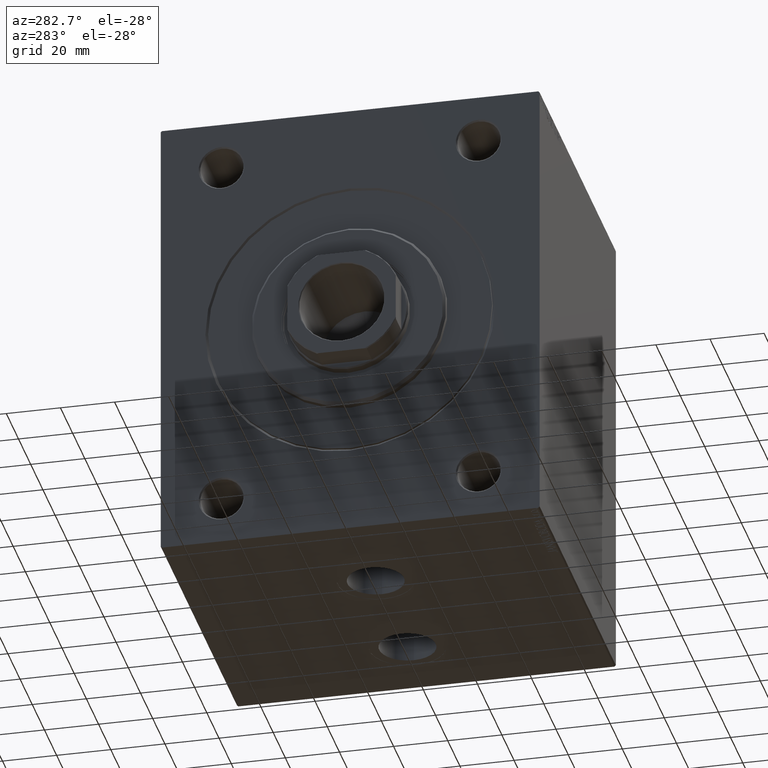
[diagram: clean part render]
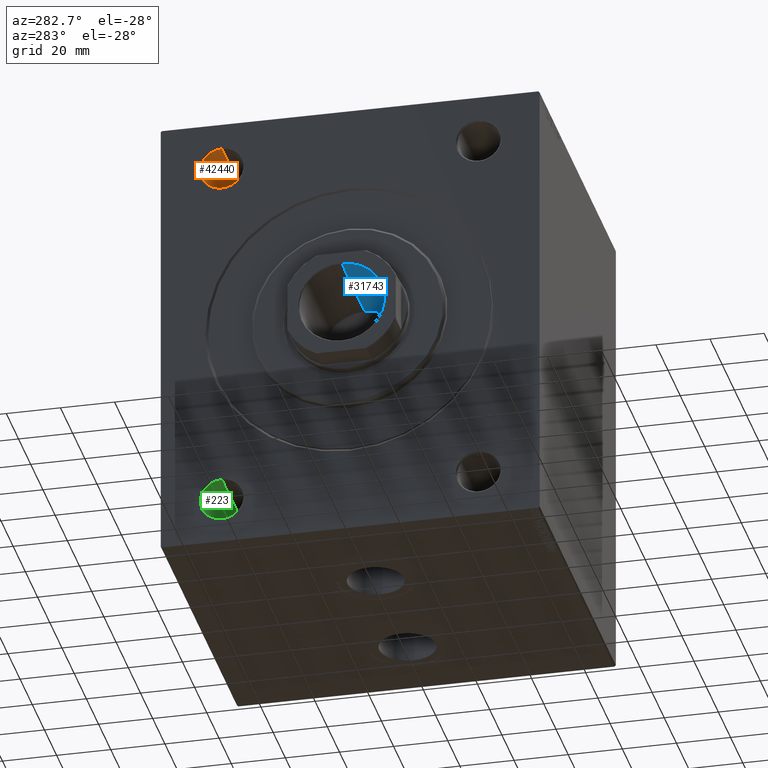
[diagram: same view with three faces highlighted in distinct colors, each labeled with its STEP entity id]
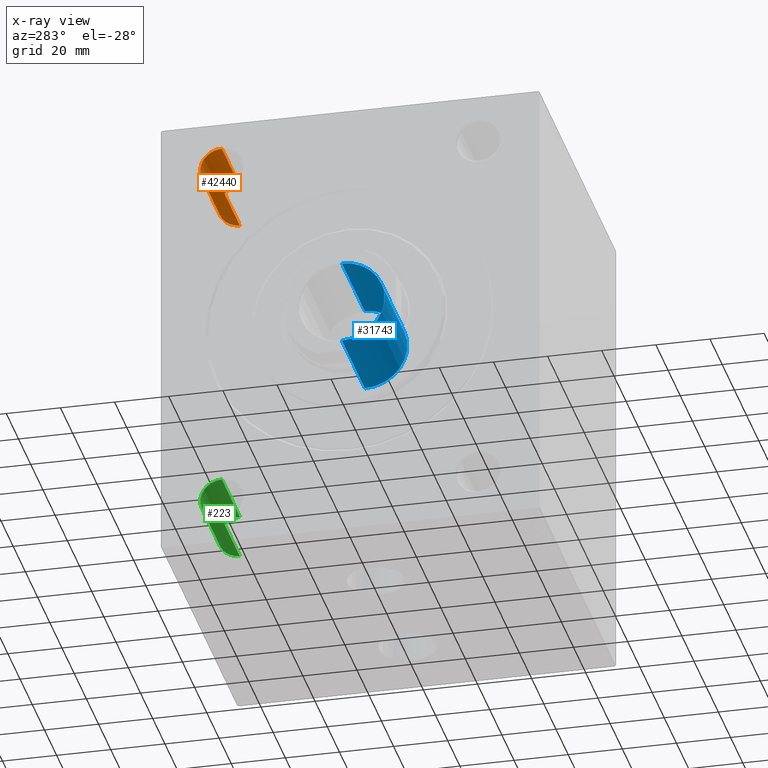
[diagram: x-ray of the same camera — body ghosted, the three highlighted faces saturated]
A machine part, auxiliary view with three faces highlighted in distinct colors.
The next image is the same camera in x-ray (body ghosted, the three faces saturated) — at least one of them is partly hidden behind the body in this view.
Their STEP definitions:

[orange] entity #42440 — the highlighted cylindrical surface (edge-blend (fillet) strip) has radius 8 mm, axis along (-1, -0, -0).
#287 = CARTESIAN_POINT ( 'NONE',  ( 0.4999999999999865663, 47.50000000000000000, 59.50000000000000000 ) ) ;
#1055 = CARTESIAN_POINT ( 'NONE',  ( 30.00000000000000000, 47.50000000000000000, 75.49999999999998579 ) ) ;
#2688 = DIRECTION ( 'NONE',  ( -1.000000000000000000, 0.000000000000000000, 0.000000000000000000 ) ) ;
#3904 = CYLINDRICAL_SURFACE ( 'NONE', #26054, 7.999999999999992895 ) ;
#6999 = AXIS2_PLACEMENT_3D ( 'NONE', #18354, #21567, #45117 ) ;
#8508 = VECTOR ( 'NONE', #26734, 1000.000000000000000 ) ;
#9144 = ORIENTED_EDGE ( 'NONE', *, *, #40369, .F. ) ;
#9670 = EDGE_CURVE ( 'NONE', #34111, #26467, #22409, .T. ) ;
#10447 = LINE ( 'NONE', #21033, #16003 ) ;
#11776 = CARTESIAN_POINT ( 'NONE',  ( 0.000000000000000000, 47.50000000000000000, 75.49999999999998579 ) ) ;
#12881 = CIRCLE ( 'NONE', #6999, 7.999999999999992895 ) ;
#14707 = FACE_OUTER_BOUND ( 'NONE', #40445, .T. ) ;
#15549 = VERTEX_POINT ( 'NONE', #1055 ) ;
#16003 = VECTOR ( 'NONE', #35068, 1000.000000000000000 ) ;
#17713 = CARTESIAN_POINT ( 'NONE',  ( 0.000000000000000000, 47.50000000000000000, 67.49999999999998579 ) ) ;
#18354 = CARTESIAN_POINT ( 'NONE',  ( 30.00000000000000000, 47.50000000000000000, 67.49999999999998579 ) ) ;
#21033 = CARTESIAN_POINT ( 'NONE',  ( 0.000000000000000000, 47.50000000000000000, 59.50000000000000000 ) ) ;
#21567 = DIRECTION ( 'NONE',  ( -1.000000000000000000, -0.000000000000000000, -0.000000000000000000 ) ) ;
#22409 = CIRCLE ( 'NONE', #24605, 7.999999999999992895 ) ;
#22601 = EDGE_CURVE ( 'NONE', #43533, #26467, #10447, .T. ) ;
#24375 = ORIENTED_EDGE ( 'NONE', *, *, #22601, .F. ) ;
#24605 = AXIS2_PLACEMENT_3D ( 'NONE', #34862, #2688, #34422 ) ;
#26054 = AXIS2_PLACEMENT_3D ( 'NONE', #17713, #38650, #45331 ) ;
#26467 = VERTEX_POINT ( 'NONE', #287 ) ;
#26734 = DIRECTION ( 'NONE',  ( -1.000000000000000000, -0.000000000000000000, -0.000000000000000000 ) ) ;
#29278 = LINE ( 'NONE', #11776, #8508 ) ;
#34111 = VERTEX_POINT ( 'NONE', #37185 ) ;
#34422 = DIRECTION ( 'NONE',  ( 0.000000000000000000, 0.000000000000000000, -1.000000000000000000 ) ) ;
#34862 = CARTESIAN_POINT ( 'NONE',  ( 0.4999999999999865663, 47.50000000000000000, 67.49999999999998579 ) ) ;
#35068 = DIRECTION ( 'NONE',  ( -1.000000000000000000, -0.000000000000000000, -0.000000000000000000 ) ) ;
#37019 = ORIENTED_EDGE ( 'NONE', *, *, #9670, .T. ) ;
#37185 = CARTESIAN_POINT ( 'NONE',  ( 0.4999999999999865663, 47.50000000000000000, 75.49999999999998579 ) ) ;
#38650 = DIRECTION ( 'NONE',  ( -1.000000000000000000, -0.000000000000000000, -0.000000000000000000 ) ) ;
#40161 = ORIENTED_EDGE ( 'NONE', *, *, #45301, .T. ) ;
#40369 = EDGE_CURVE ( 'NONE', #15549, #43533, #12881, .T. ) ;
#40445 = EDGE_LOOP ( 'NONE', ( #24375, #9144, #40161, #37019 ) ) ;
#40483 = CARTESIAN_POINT ( 'NONE',  ( 30.00000000000000000, 47.50000000000000000, 59.50000000000000000 ) ) ;
#42440 = ADVANCED_FACE ( 'NONE', ( #14707 ), #3904, .F. ) ;
#43533 = VERTEX_POINT ( 'NONE', #40483 ) ;
#45117 = DIRECTION ( 'NONE',  ( 0.000000000000000000, 0.000000000000000000, 1.000000000000000000 ) ) ;
#45301 = EDGE_CURVE ( 'NONE', #15549, #34111, #29278, .T. ) ;
#45331 = DIRECTION ( 'NONE',  ( 0.000000000000000000, 0.000000000000000000, 1.000000000000000000 ) ) ;

[blue] entity #31743 — the highlighted cylindrical surface (partial cylindrical patch) has radius 15.75 mm, axis along (-1, 0, 0).
#1619 = EDGE_CURVE ( 'NONE', #27295, #13794, #39802, .T. ) ;
#1665 = DIRECTION ( 'NONE',  ( 1.000000000000000000, 0.000000000000000000, 0.000000000000000000 ) ) ;
#2123 = ORIENTED_EDGE ( 'NONE', *, *, #40159, .T. ) ;
#4800 = CARTESIAN_POINT ( 'NONE',  ( -15.74999999999999289, 1.928818708657080556E-15, 26.99999999999998934 ) ) ;
#5350 = CYLINDRICAL_SURFACE ( 'NONE', #39776, 15.74999999999999289 ) ;
#6419 = AXIS2_PLACEMENT_3D ( 'NONE', #31226, #18086, #24990 ) ;
#6580 = CARTESIAN_POINT ( 'NONE',  ( 15.74999999999999289, 0.000000000000000000, 26.99999999999998934 ) ) ;
#7184 = LINE ( 'NONE', #17776, #18067 ) ;
#8522 = ORIENTED_EDGE ( 'NONE', *, *, #1619, .F. ) ;
#8788 = DIRECTION ( 'NONE',  ( 0.000000000000000000, 0.000000000000000000, 1.000000000000000000 ) ) ;
#10859 = DIRECTION ( 'NONE',  ( -0.000000000000000000, -0.000000000000000000, 1.000000000000000000 ) ) ;
#11390 = CIRCLE ( 'NONE', #36392, 15.74999999999999289 ) ;
#12432 = VECTOR ( 'NONE', #36112, 1000.000000000000000 ) ;
#13794 = VERTEX_POINT ( 'NONE', #40279 ) ;
#14893 = VERTEX_POINT ( 'NONE', #4800 ) ;
#17173 = ORIENTED_EDGE ( 'NONE', *, *, #21594, .F. ) ;
#17605 = EDGE_CURVE ( 'NONE', #14893, #44444, #7184, .T. ) ;
#17776 = CARTESIAN_POINT ( 'NONE',  ( -15.74999999999999289, 1.928818708657080556E-15, 64.99999999999998579 ) ) ;
#18067 = VECTOR ( 'NONE', #10859, 1000.000000000000000 ) ;
#18086 = DIRECTION ( 'NONE',  ( -0.000000000000000000, -0.000000000000000000, 1.000000000000000000 ) ) ;
#21594 = EDGE_CURVE ( 'NONE', #14893, #27295, #26259, .T. ) ;
#22829 = CARTESIAN_POINT ( 'NONE',  ( -15.74999999999999289, 1.928818708657080556E-15, 64.70000000000000284 ) ) ;
#22832 = CARTESIAN_POINT ( 'NONE',  ( 0.000000000000000000, 0.000000000000000000, 64.70000000000000284 ) ) ;
#24990 = DIRECTION ( 'NONE',  ( 1.000000000000000000, 0.000000000000000000, 0.000000000000000000 ) ) ;
#26259 = CIRCLE ( 'NONE', #6419, 15.74999999999999289 ) ;
#27295 = VERTEX_POINT ( 'NONE', #6580 ) ;
#29743 = DIRECTION ( 'NONE',  ( 1.000000000000000000, 0.000000000000000000, 0.000000000000000000 ) ) ;
#29973 = DIRECTION ( 'NONE',  ( -0.000000000000000000, -0.000000000000000000, 1.000000000000000000 ) ) ;
#31226 = CARTESIAN_POINT ( 'NONE',  ( 0.000000000000000000, 0.000000000000000000, 26.99999999999998934 ) ) ;
#31743 = ADVANCED_FACE ( 'NONE', ( #37099 ), #5350, .F. ) ;
#35914 = ORIENTED_EDGE ( 'NONE', *, *, #17605, .T. ) ;
#36112 = DIRECTION ( 'NONE',  ( -0.000000000000000000, -0.000000000000000000, 1.000000000000000000 ) ) ;
#36392 = AXIS2_PLACEMENT_3D ( 'NONE', #22832, #8788, #1665 ) ;
#36638 = CARTESIAN_POINT ( 'NONE',  ( 0.000000000000000000, 0.000000000000000000, 64.99999999999998579 ) ) ;
#37099 = FACE_OUTER_BOUND ( 'NONE', #42520, .T. ) ;
#39776 = AXIS2_PLACEMENT_3D ( 'NONE', #36638, #29973, #29743 ) ;
#39802 = LINE ( 'NONE', #43244, #12432 ) ;
#40159 = EDGE_CURVE ( 'NONE', #44444, #13794, #11390, .T. ) ;
#40279 = CARTESIAN_POINT ( 'NONE',  ( 15.74999999999999289, 0.000000000000000000, 64.70000000000000284 ) ) ;
#42520 = EDGE_LOOP ( 'NONE', ( #17173, #35914, #2123, #8522 ) ) ;
#43244 = CARTESIAN_POINT ( 'NONE',  ( 15.74999999999999289, 0.000000000000000000, 64.99999999999998579 ) ) ;
#44444 = VERTEX_POINT ( 'NONE', #22829 ) ;

[green] entity #223 — the highlighted cylindrical surface (edge-blend (fillet) strip) has radius 8 mm, axis along (-1, -0, -0).
#223 = ADVANCED_FACE ( 'NONE', ( #6743 ), #30700, .F. ) ;
#564 = CIRCLE ( 'NONE', #36561, 7.999999999999992895 ) ;
#2395 = CARTESIAN_POINT ( 'NONE',  ( 0.000000000000000000, 47.50000000000000000, -67.50000000000001421 ) ) ;
#2844 = CARTESIAN_POINT ( 'NONE',  ( 0.000000000000000000, 47.50000000000000000, -59.50000000000002842 ) ) ;
#3633 = EDGE_LOOP ( 'NONE', ( #26975, #41266, #44410, #29643 ) ) ;
#5792 = VECTOR ( 'NONE', #41622, 1000.000000000000000 ) ;
#6743 = FACE_OUTER_BOUND ( 'NONE', #3633, .T. ) ;
#8039 = EDGE_CURVE ( 'NONE', #36538, #8555, #38271, .T. ) ;
#8555 = VERTEX_POINT ( 'NONE', #12957 ) ;
#9551 = CARTESIAN_POINT ( 'NONE',  ( 0.4999999999999865663, 47.50000000000000000, -75.50000000000001421 ) ) ;
#9914 = EDGE_CURVE ( 'NONE', #36538, #18299, #36360, .T. ) ;
#10065 = DIRECTION ( 'NONE',  ( 0.000000000000000000, 0.000000000000000000, -1.000000000000000000 ) ) ;
#10193 = DIRECTION ( 'NONE',  ( 0.000000000000000000, 0.000000000000000000, 1.000000000000000000 ) ) ;
#11495 = DIRECTION ( 'NONE',  ( 0.000000000000000000, 0.000000000000000000, 1.000000000000000000 ) ) ;
#11947 = CARTESIAN_POINT ( 'NONE',  ( 30.00000000000000000, 47.50000000000000000, -67.50000000000001421 ) ) ;
#12085 = AXIS2_PLACEMENT_3D ( 'NONE', #11947, #25997, #11495 ) ;
#12957 = CARTESIAN_POINT ( 'NONE',  ( 0.4999999999999865663, 47.50000000000000000, -59.50000000000002842 ) ) ;
#13534 = LINE ( 'NONE', #27589, #5792 ) ;
#14037 = CARTESIAN_POINT ( 'NONE',  ( 30.00000000000000000, 47.50000000000000000, -59.50000000000002842 ) ) ;
#17326 = DIRECTION ( 'NONE',  ( -1.000000000000000000, -0.000000000000000000, -0.000000000000000000 ) ) ;
#18299 = VERTEX_POINT ( 'NONE', #31013 ) ;
#20491 = AXIS2_PLACEMENT_3D ( 'NONE', #2395, #17326, #10193 ) ;
#22224 = EDGE_CURVE ( 'NONE', #8555, #33655, #564, .T. ) ;
#25562 = EDGE_CURVE ( 'NONE', #18299, #33655, #13534, .T. ) ;
#25997 = DIRECTION ( 'NONE',  ( -1.000000000000000000, -0.000000000000000000, -0.000000000000000000 ) ) ;
#26975 = ORIENTED_EDGE ( 'NONE', *, *, #25562, .F. ) ;
#27554 = DIRECTION ( 'NONE',  ( -1.000000000000000000, 0.000000000000000000, 0.000000000000000000 ) ) ;
#27589 = CARTESIAN_POINT ( 'NONE',  ( 0.000000000000000000, 47.50000000000000000, -75.50000000000001421 ) ) ;
#29643 = ORIENTED_EDGE ( 'NONE', *, *, #22224, .T. ) ;
#30700 = CYLINDRICAL_SURFACE ( 'NONE', #20491, 7.999999999999992895 ) ;
#31013 = CARTESIAN_POINT ( 'NONE',  ( 30.00000000000000000, 47.50000000000000000, -75.50000000000001421 ) ) ;
#31864 = VECTOR ( 'NONE', #35024, 1000.000000000000000 ) ;
#33655 = VERTEX_POINT ( 'NONE', #9551 ) ;
#34452 = CARTESIAN_POINT ( 'NONE',  ( 0.4999999999999865663, 47.50000000000000000, -67.50000000000001421 ) ) ;
#35024 = DIRECTION ( 'NONE',  ( -1.000000000000000000, -0.000000000000000000, -0.000000000000000000 ) ) ;
#36360 = CIRCLE ( 'NONE', #12085, 7.999999999999992895 ) ;
#36538 = VERTEX_POINT ( 'NONE', #14037 ) ;
#36561 = AXIS2_PLACEMENT_3D ( 'NONE', #34452, #27554, #10065 ) ;
#38271 = LINE ( 'NONE', #2844, #31864 ) ;
#41266 = ORIENTED_EDGE ( 'NONE', *, *, #9914, .F. ) ;
#41622 = DIRECTION ( 'NONE',  ( -1.000000000000000000, -0.000000000000000000, -0.000000000000000000 ) ) ;
#44410 = ORIENTED_EDGE ( 'NONE', *, *, #8039, .T. ) ;